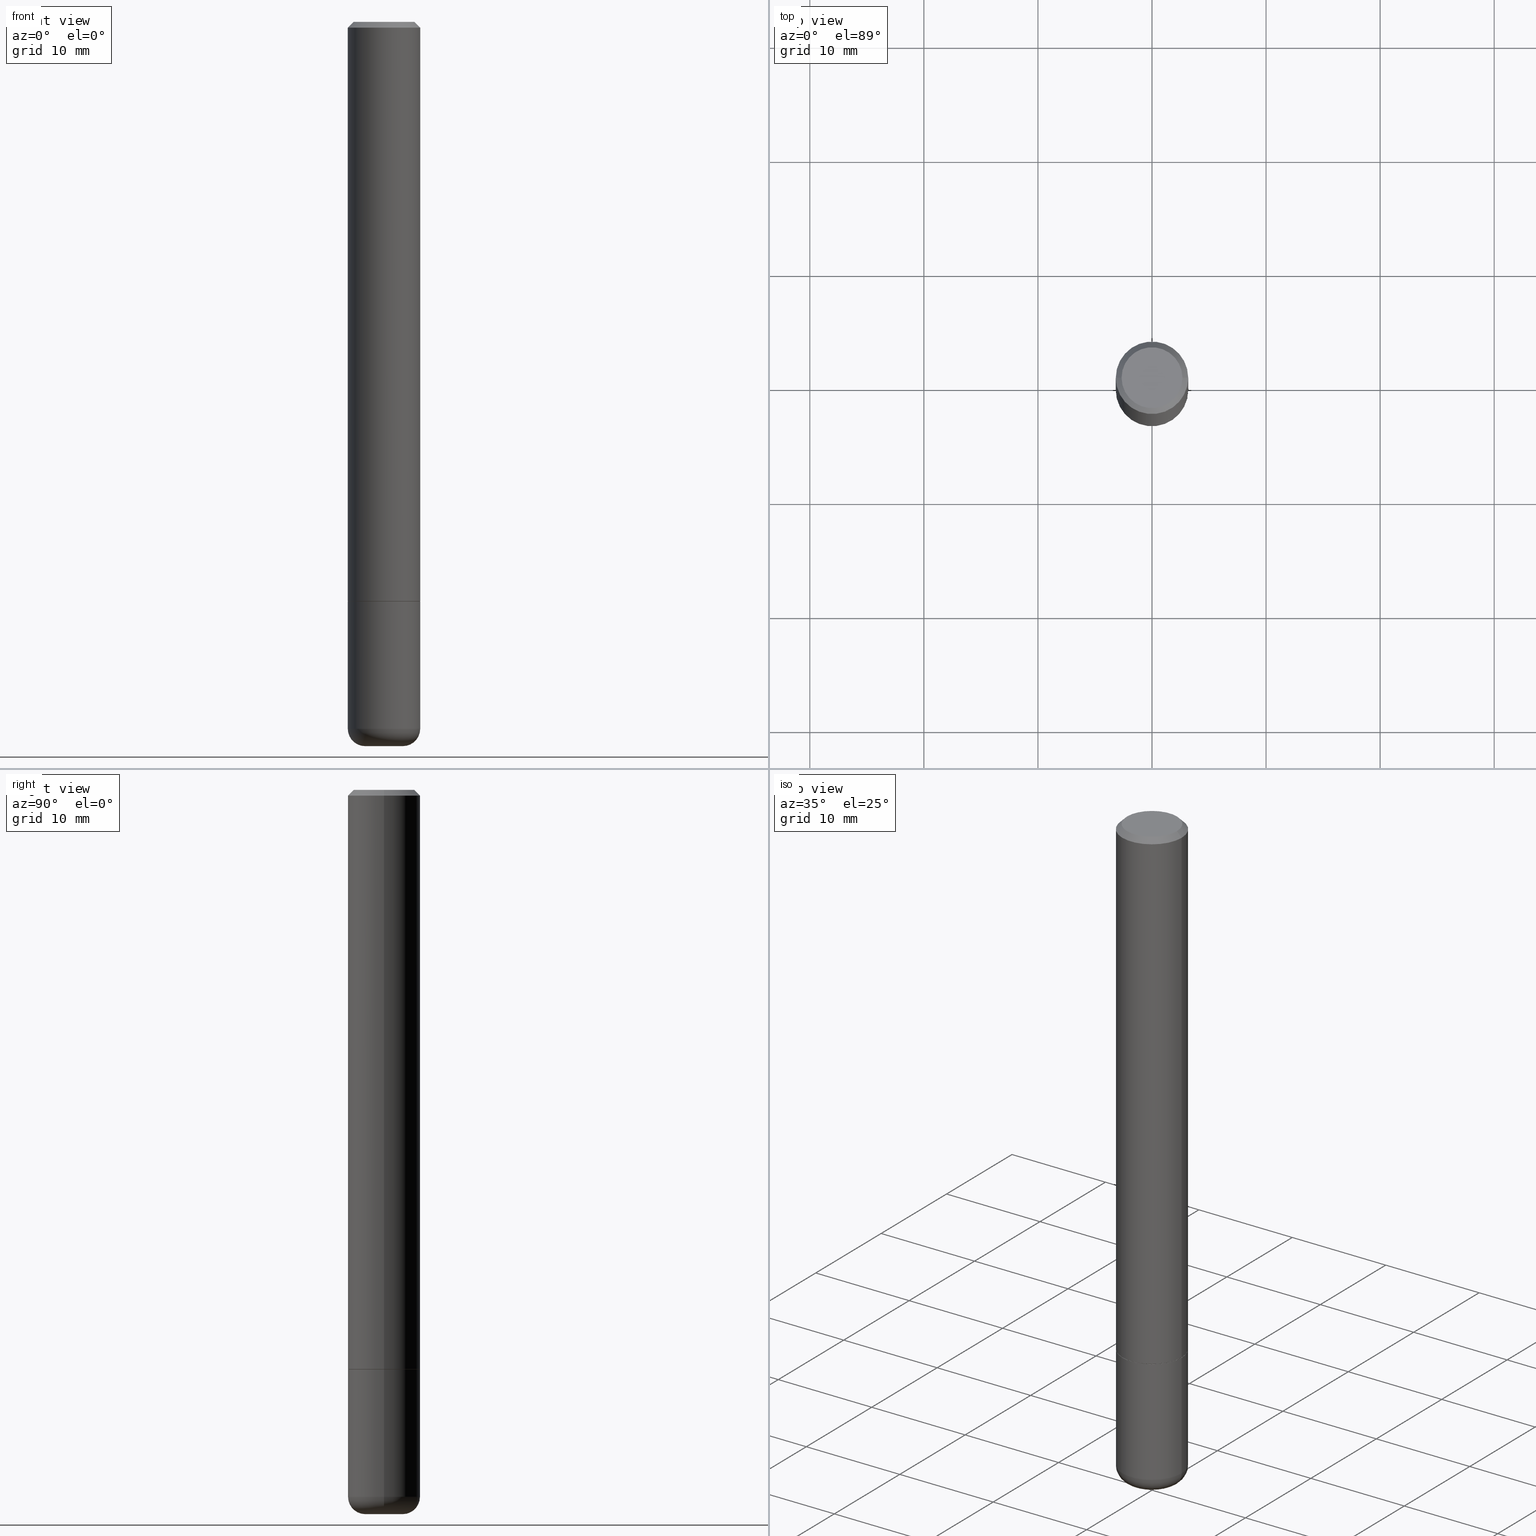
[diagram: canonical four-view strip — front | top / right | iso, engineering-drawing reading convention]
A machine part, canonical four-view strip (front | top / right | iso — engineering-drawing reading convention). The complete STEP part file that produces these views, byte-faithful:
ISO-10303-21;
HEADER;
FILE_DESCRIPTION (( 'STEP AP203' ),
    '1' );
FILE_NAME ('38795.STEP',
    '2024-03-03T13:16:22',
    ( '' ),
    ( '' ),
    'SwSTEP 2.0',
    'SolidWorks 2023',
    '' );
FILE_SCHEMA (( 'CONFIG_CONTROL_DESIGN' ));
ENDSEC;

DATA;
#1 = DIRECTION ( 'NONE',  ( 1.000000000000000000, -6.982962677686266711E-15, 0.000000000000000000 ) ) ;
#2 = DATE_AND_TIME ( #282, #67 ) ;
#3 = AXIS2_PLACEMENT_3D ( 'NONE', #9, #312, #36 ) ;
#4 = ORIENTED_EDGE ( 'NONE', *, *, #116, .F. ) ;
#5 = CYLINDRICAL_SURFACE ( 'NONE', #156, 0.1250000000000001110 ) ;
#6 = CIRCLE ( 'NONE', #18, 0.1250000000000000000 ) ;
#7 = EDGE_CURVE ( 'NONE', #42, #399, #375, .T. ) ;
#8 = CARTESIAN_POINT ( 'NONE',  ( 0.000000000000000000, 0.000000000000000000, 0.000000000000000000 ) ) ;
#9 = CARTESIAN_POINT ( 'NONE',  ( 4.890937612370279289E-31, -6.982962677686299005E-17, -0.02000000000000002470 ) ) ;
#10 = ORIENTED_EDGE ( 'NONE', *, *, #364, .T. ) ;
#11 = EDGE_LOOP ( 'NONE', ( #265, #183, #210, #335 ) ) ;
#12 = VERTEX_POINT ( 'NONE', #234 ) ;
#13 = APPROVAL_PERSON_ORGANIZATION ( #144, #55, #293 ) ;
#14 = ORIENTED_EDGE ( 'NONE', *, *, #32, .F. ) ;
#15 = ADVANCED_FACE ( 'NONE', ( #114 ), #365, .F. ) ;
#16 = AXIS2_PLACEMENT_3D ( 'NONE', #132, #261, #398 ) ;
#17 = CARTESIAN_POINT ( 'NONE',  ( 4.890937612370273194E-29, -6.982962677686291165E-15, -2.000000000000000000 ) ) ;
#18 = AXIS2_PLACEMENT_3D ( 'NONE', #123, #314, #105 ) ;
#19 = EDGE_LOOP ( 'NONE', ( #194, #396, #102, #54 ) ) ;
#20 = COORDINATED_UNIVERSAL_TIME_OFFSET ( 5, 0, .BEHIND. ) ;
#21 = CARTESIAN_POINT ( 'NONE',  ( -0.1239999999999999991, -6.096591230995543750E-15, -2.000000000000000000 ) ) ;
#22 = APPLICATION_PROTOCOL_DEFINITION ( 'international standard', 'config_control_design', 1994, #368 ) ;
#23 = EDGE_CURVE ( 'NONE', #399, #104, #310, .T. ) ;
#24 = FACE_OUTER_BOUND ( 'NONE', #207, .T. ) ;
#25 = AXIS2_PLACEMENT_3D ( 'NONE', #68, #192, #328 ) ;
#26 = ADVANCED_BREP_SHAPE_REPRESENTATION ( '38795', ( #93, #231, #279 ), #322 ) ;
#27 = AXIS2_PLACEMENT_3D ( 'NONE', #28, #215, #1 ) ;
#28 = CARTESIAN_POINT ( 'NONE',  ( 4.890937612370279289E-31, -6.982962677686299005E-17, -0.02000000000000002470 ) ) ;
#29 = COORDINATED_UNIVERSAL_TIME_OFFSET ( 5, 0, .BEHIND. ) ;
#30 = VERTEX_POINT ( 'NONE', #326 ) ;
#31 = CARTESIAN_POINT ( 'NONE',  ( -0.1250000000000000000, -6.862910152531658269E-15, -2.000000000000000000 ) ) ;
#32 = EDGE_CURVE ( 'NONE', #177, #47, #131, .T. ) ;
#33 = AXIS2_PLACEMENT_3D ( 'NONE', #264, #103, #393 ) ;
#34 = EDGE_LOOP ( 'NONE', ( #346, #226, #410, #408 ) ) ;
#35 = DIMENSIONAL_EXPONENTS ( 1.000000000000000000, 0.000000000000000000, 0.000000000000000000, 0.000000000000000000, 0.000000000000000000, 0.000000000000000000, 0.000000000000000000 ) ;
#36 = DIRECTION ( 'NONE',  ( 1.000000000000000000, -6.982962677686266711E-15, 0.000000000000000000 ) ) ;
#37 = CARTESIAN_POINT ( 'NONE',  ( 5.966943887091733341E-29, -8.519214466777275048E-15, -2.440000000000000391 ) ) ;
#38 = DIRECTION ( 'NONE',  ( 0.7071067811866078578, -2.468850131082888544E-15, 0.7071067811864871766 ) ) ;
#39 = ORIENTED_EDGE ( 'NONE', *, *, #116, .T. ) ;
#40 = EDGE_CURVE ( 'NONE', #329, #69, #391, .T. ) ;
#41 = AXIS2_PLACEMENT_3D ( 'NONE', #257, #309, #222 ) ;
#42 = VERTEX_POINT ( 'NONE', #357 ) ;
#43 = ORIENTED_EDGE ( 'NONE', *, *, #267, .T. ) ;
#44 = FACE_OUTER_BOUND ( 'NONE', #160, .T. ) ;
#45 = APPLICATION_CONTEXT ( 'configuration controlled 3d designs of mechanical parts and assemblies' ) ;
#46 = CARTESIAN_POINT ( 'NONE',  ( 6.113672015462842613E-29, -8.728703347107866520E-15, -2.500000000000000444 ) ) ;
#47 = VERTEX_POINT ( 'NONE', #126 ) ;
#48 = AXIS2_PLACEMENT_3D ( 'NONE', #308, #387, #278 ) ;
#49 =( CONVERSION_BASED_UNIT ( 'INCH', #338 ) LENGTH_UNIT ( ) NAMED_UNIT ( #35 ) );
#50 = EDGE_CURVE ( 'NONE', #47, #69, #238, .T. ) ;
#51 =( NAMED_UNIT ( * ) SI_UNIT ( $, .STERADIAN. ) SOLID_ANGLE_UNIT ( ) );
#52 = COORDINATED_UNIVERSAL_TIME_OFFSET ( 5, 0, .BEHIND. ) ;
#53 = DIRECTION ( 'NONE',  ( 1.000000000000000000, -6.982962677686265922E-15, 4.876206205277392908E-29 ) ) ;
#54 = ORIENTED_EDGE ( 'NONE', *, *, #189, .F. ) ;
#55 = APPROVAL ( #327, 'UNSPECIFIED' ) ;
#56 = CALENDAR_DATE ( 2024, 3, 3 ) ;
#57 = CYLINDRICAL_SURFACE ( 'NONE', #296, 0.1250000000000000000 ) ;
#58 = ORIENTED_EDGE ( 'NONE', *, *, #70, .T. ) ;
#59 = AXIS2_PLACEMENT_3D ( 'NONE', #273, #305, #117 ) ;
#60 = APPROVAL_PERSON_ORGANIZATION ( #302, #133, #280 ) ;
#61 = FACE_OUTER_BOUND ( 'NONE', #331, .T. ) ;
#62 = PERSON_AND_ORGANIZATION ( #186, #108 ) ;
#63 = EDGE_LOOP ( 'NONE', ( #79, #342, #101, #4 ) ) ;
#64 = DATE_TIME_ROLE ( 'classification_date' ) ;
#65 = FACE_OUTER_BOUND ( 'NONE', #377, .T. ) ;
#66 = DIRECTION ( 'NONE',  ( 1.000000000000000000, -6.982962677686266711E-15, 4.876176775795935793E-29 ) ) ;
#67 = LOCAL_TIME ( 8, 16, 22.00000000000000000, #221 ) ;
#68 = CARTESIAN_POINT ( 'NONE',  ( 4.890937612370279289E-31, -6.982962677686299005E-17, -0.02000000000000002470 ) ) ;
#69 = VERTEX_POINT ( 'NONE', #350 ) ;
#70 = EDGE_CURVE ( 'NONE', #324, #42, #400, .T. ) ;
#71 = CARTESIAN_POINT ( 'NONE',  ( 4.888492143564087591E-29, -6.979471196347447369E-15, -1.998999999999999888 ) ) ;
#72 = EDGE_LOOP ( 'NONE', ( #379, #411, #128, #372 ) ) ;
#73 = CARTESIAN_POINT ( 'NONE',  ( -0.1239999999999999991, -6.101889685343766941E-15, -2.000000000000000000 ) ) ;
#74 = CARTESIAN_POINT ( 'NONE',  ( 4.890937612370273194E-29, -6.982962677686291165E-15, -2.000000000000000000 ) ) ;
#75 = DIRECTION ( 'NONE',  ( 1.000000000000000000, -6.982962677686270655E-15, 0.000000000000000000 ) ) ;
#76 = AXIS2_PLACEMENT_3D ( 'NONE', #355, #157, #53 ) ;
#77 = PERSON_AND_ORGANIZATION ( #186, #108 ) ;
#78 = PRODUCT_RELATED_PRODUCT_CATEGORY ( 'detail', '', ( #155 ) ) ;
#79 = ORIENTED_EDGE ( 'NONE', *, *, #409, .F. ) ;
#80 = VECTOR ( 'NONE', #38, 39.37007874015748143 ) ;
#81 = LOCAL_TIME ( 8, 16, 22.00000000000000000, #52 ) ;
#82 = CC_DESIGN_DATE_AND_TIME_ASSIGNMENT ( #120, #64, ( #344 ) ) ;
#83 = DIRECTION ( 'NONE',  ( -1.000000000000000000, 6.982962677686265922E-15, -4.876176775795935793E-29 ) ) ;
#84 = DIRECTION ( 'NONE',  ( -2.445468806185136597E-29, 3.491481338843145583E-15, 1.000000000000000000 ) ) ;
#85 = ORIENTED_EDGE ( 'NONE', *, *, #371, .F. ) ;
#86 = CARTESIAN_POINT ( 'NONE',  ( 4.890937612370279289E-31, -6.982962677686299005E-17, -0.02000000000000002470 ) ) ;
#87 = PERSON_AND_ORGANIZATION_ROLE ( 'classification_officer' ) ;
#88 = DIRECTION ( 'NONE',  ( 1.000000000000000000, -6.982962677686266711E-15, 4.876176775795935793E-29 ) ) ;
#89 = DIRECTION ( 'NONE',  ( 1.000000000000000000, -6.982962677686265133E-15, 4.883557194083112340E-29 ) ) ;
#90 = ORIENTED_EDGE ( 'NONE', *, *, #97, .T. ) ;
#91 = AXIS2_PLACEMENT_3D ( 'NONE', #96, #127, #162 ) ;
#92 = CC_DESIGN_PERSON_AND_ORGANIZATION_ASSIGNMENT ( #249, #345, ( #266 ) ) ;
#93 = MANIFOLD_SOLID_BREP ( 'Body-Move/Copy2[1]', #382 ) ;
#94 = CALENDAR_DATE ( 2024, 3, 3 ) ;
#95 = CARTESIAN_POINT ( 'NONE',  ( 0.06500000000000000222, -9.182595921157474803E-15, -2.500000000000000444 ) ) ;
#96 = CARTESIAN_POINT ( 'NONE',  ( 4.890937612370273194E-29, -6.982962677686291165E-15, -2.000000000000000000 ) ) ;
#97 = EDGE_CURVE ( 'NONE', #12, #404, #223, .T. ) ;
#98 = AXIS2_PLACEMENT_3D ( 'NONE', #129, #359, #256 ) ;
#99 = AXIS2_PLACEMENT_3D ( 'NONE', #37, #191, #352 ) ;
#100 = FACE_OUTER_BOUND ( 'NONE', #320, .T. ) ;
#101 = ORIENTED_EDGE ( 'NONE', *, *, #169, .T. ) ;
#102 = ORIENTED_EDGE ( 'NONE', *, *, #306, .F. ) ;
#103 = DIRECTION ( 'NONE',  ( -2.445468806185136597E-29, 3.491481338843145583E-15, 1.000000000000000000 ) ) ;
#104 = VERTEX_POINT ( 'NONE', #164 ) ;
#105 = DIRECTION ( 'NONE',  ( 1.000000000000000000, -6.982962677686270655E-15, 0.000000000000000000 ) ) ;
#106 = CARTESIAN_POINT ( 'NONE',  ( 0.1239999999999999991, -7.848850049719387701E-15, -2.000000000000000000 ) ) ;
#107 = CARTESIAN_POINT ( 'NONE',  ( 7.332110811570580243E-16, 0.1050000000000000239, -3.730083093136809834E-16 ) ) ;
#108 = ORGANIZATION ( 'UNSPECIFIED', 'UNSPECIFIED', '' ) ;
#109 = ORIENTED_EDGE ( 'NONE', *, *, #268, .T. ) ;
#110 = APPROVAL ( #418, 'UNSPECIFIED' ) ;
#111 = DIRECTION ( 'NONE',  ( -2.445468806185136597E-29, 3.491481338843145583E-15, 1.000000000000000000 ) ) ;
#112 = CC_DESIGN_APPROVAL ( #133, ( #344 ) ) ;
#113 = DATE_AND_TIME ( #407, #336 ) ;
#114 = FACE_OUTER_BOUND ( 'NONE', #285, .T. ) ;
#115 = CYLINDRICAL_SURFACE ( 'NONE', #390, 0.1250000000000001110 ) ;
#116 = EDGE_CURVE ( 'NONE', #30, #404, #295, .T. ) ;
#117 = DIRECTION ( 'NONE',  ( 1.000000000000000000, -6.982962677686262766E-15, 0.000000000000000000 ) ) ;
#118 = VECTOR ( 'NONE', #250, 39.37007874015748143 ) ;
#119 = VECTOR ( 'NONE', #381, 39.37007874015748143 ) ;
#120 = DATE_AND_TIME ( #56, #291 ) ;
#121 = APPROVAL_DATE_TIME ( #2, #110 ) ;
#122 = EDGE_CURVE ( 'NONE', #69, #47, #235, .T. ) ;
#123 = CARTESIAN_POINT ( 'NONE',  ( 4.890937612370273194E-29, -6.982962677686291165E-15, -2.000000000000000000 ) ) ;
#124 = AXIS2_PLACEMENT_3D ( 'NONE', #107, #230, #83 ) ;
#125 = CARTESIAN_POINT ( 'NONE',  ( 0.000000000000000000, 0.000000000000000000, 0.000000000000000000 ) ) ;
#126 = CARTESIAN_POINT ( 'NONE',  ( -0.1250000000000002498, -2.636471991862024185E-15, -1.998999999999999888 ) ) ;
#127 = DIRECTION ( 'NONE',  ( -2.445468806185136597E-29, 3.491481338843145583E-15, 1.000000000000000000 ) ) ;
#128 = ORIENTED_EDGE ( 'NONE', *, *, #332, .T. ) ;
#129 = CARTESIAN_POINT ( 'NONE',  ( 4.888492143564087591E-29, -6.979471196347447369E-15, -1.998999999999999888 ) ) ;
#130 = ORIENTED_EDGE ( 'NONE', *, *, #332, .F. ) ;
#131 = LINE ( 'NONE', #73, #274 ) ;
#132 = CARTESIAN_POINT ( 'NONE',  ( -0.06500000000000000222, -8.057361688533210306E-15, -2.440000000000000391 ) ) ;
#133 = APPROVAL ( #184, 'UNSPECIFIED' ) ;
#134 = MECHANICAL_CONTEXT ( 'NONE', #368, 'mechanical' ) ;
#135 = FACE_OUTER_BOUND ( 'NONE', #19, .T. ) ;
#136 = ORIENTED_EDGE ( 'NONE', *, *, #313, .F. ) ;
#137 = VECTOR ( 'NONE', #373, 39.37007874015748143 ) ;
#138 = ADVANCED_FACE ( 'NONE', ( #290 ), #208, .T. ) ;
#139 = CARTESIAN_POINT ( 'NONE',  ( 4.890937612370273194E-29, -6.982962677686291165E-15, -2.000000000000000000 ) ) ;
#140 = PLANE ( 'NONE',  #124 ) ;
#141 = CIRCLE ( 'NONE', #270, 0.1250000000000000000 ) ;
#142 = DESIGN_CONTEXT ( 'detailed design', #45, 'design' ) ;
#143 = DIRECTION ( 'NONE',  ( 2.438088387897960049E-29, -3.491481338843145188E-15, -1.000000000000000000 ) ) ;
#144 = PERSON_AND_ORGANIZATION ( #186, #108 ) ;
#145 = ORIENTED_EDGE ( 'NONE', *, *, #364, .F. ) ;
#146 = PRODUCT_DEFINITION_SHAPE ( 'NONE', 'NONE',  #227 ) ;
#147 = ADVANCED_FACE ( 'NONE', ( #135 ), #388, .T. ) ;
#148 = DIRECTION ( 'NONE',  ( -2.445468806185136597E-29, 3.491481338843145583E-15, 1.000000000000000000 ) ) ;
#149 = CARTESIAN_POINT ( 'NONE',  ( 0.000000000000000000, 0.000000000000000000, 0.000000000000000000 ) ) ;
#150 = CC_DESIGN_APPROVAL ( #110, ( #266 ) ) ;
#151 = CC_DESIGN_PERSON_AND_ORGANIZATION_ASSIGNMENT ( #62, #87, ( #344 ) ) ;
#152 = DATE_AND_TIME ( #159, #81 ) ;
#153 = ORIENTED_EDGE ( 'NONE', *, *, #32, .T. ) ;
#154 = FACE_OUTER_BOUND ( 'NONE', #72, .T. ) ;
#155 = PRODUCT ( '38795', '38795', '', ( #134 ) ) ;
#156 = AXIS2_PLACEMENT_3D ( 'NONE', #125, #385, #219 ) ;
#157 = DIRECTION ( 'NONE',  ( -2.445468806185136597E-29, 3.491481338843145583E-15, 1.000000000000000000 ) ) ;
#158 = LINE ( 'NONE', #281, #201 ) ;
#159 = CALENDAR_DATE ( 2024, 3, 3 ) ;
#160 = EDGE_LOOP ( 'NONE', ( #199, #10 ) ) ;
#161 = UNCERTAINTY_MEASURE_WITH_UNIT (LENGTH_MEASURE( 1.000000000000000082E-05 ), #49, 'distance_accuracy_value', 'NONE');
#162 = DIRECTION ( 'NONE',  ( 1.000000000000000000, -6.982962677686262766E-15, 0.000000000000000000 ) ) ;
#163 = DIRECTION ( 'NONE',  ( -2.445468806185136597E-29, 3.491481338843145583E-15, 1.000000000000000000 ) ) ;
#164 = CARTESIAN_POINT ( 'NONE',  ( 0.1250000000000001110, -9.392084801488058387E-15, -2.440000000000000391 ) ) ;
#165 = CC_DESIGN_SECURITY_CLASSIFICATION ( #344, ( #266 ) ) ;
#166 = DIRECTION ( 'NONE',  ( -2.445468806185136597E-29, 3.491481338843145583E-15, 1.000000000000000000 ) ) ;
#167 = ORIENTED_EDGE ( 'NONE', *, *, #50, .F. ) ;
#168 = DIRECTION ( 'NONE',  ( -2.445468806185136597E-29, 3.491481338843145583E-15, 1.000000000000000000 ) ) ;
#169 = EDGE_CURVE ( 'NONE', #69, #404, #158, .T. ) ;
#170 = CIRCLE ( 'NONE', #48, 0.06000000000000024064 ) ;
#171 = AXIS2_PLACEMENT_3D ( 'NONE', #319, #232, #284 ) ;
#172 = CARTESIAN_POINT ( 'NONE',  ( -0.1250000000000001110, -7.631036047077149816E-15, -2.440000000000000391 ) ) ;
#173 = AXIS2_PLACEMENT_3D ( 'NONE', #74, #166, #262 ) ;
#174 = ADVANCED_FACE ( 'NONE', ( #354 ), #245, .T. ) ;
#175 = ORIENTED_EDGE ( 'NONE', *, *, #122, .F. ) ;
#176 = DIRECTION ( 'NONE',  ( 1.000000000000000000, -6.982962677686266711E-15, 4.876176775795935232E-29 ) ) ;
#177 = VERTEX_POINT ( 'NONE', #21 ) ;
#178 = DIRECTION ( 'NONE',  ( 2.445468806185136597E-29, -3.491481338843145583E-15, -1.000000000000000000 ) ) ;
#179 = DIRECTION ( 'NONE',  ( 1.000000000000000000, -6.982962677686262766E-15, 0.000000000000000000 ) ) ;
#180 = ADVANCED_FACE ( 'NONE', ( #61 ), #299, .T. ) ;
#181 = CARTESIAN_POINT ( 'NONE',  ( -0.1050000000000000239, 7.681258945454891804E-16, -1.280553747030648315E-17 ) ) ;
#182 = CIRCLE ( 'NONE', #353, 0.1050000000000000239 ) ;
#183 = ORIENTED_EDGE ( 'NONE', *, *, #23, .T. ) ;
#184 = APPROVAL_STATUS ( 'not_yet_approved' ) ;
#185 = ORIENTED_EDGE ( 'NONE', *, *, #306, .T. ) ;
#186 = PERSON ( 'UNSPECIFIED', 'UNSPECIFIED', 'UNSPECIFIED', ('UNSPECIFIED'), ('UNSPECIFIED'), ('UNSPECIFIED') ) ;
#187 = SHAPE_DEFINITION_REPRESENTATION ( #146, #26 ) ;
#188 = PLANE ( 'NONE',  #171 ) ;
#189 = EDGE_CURVE ( 'NONE', #104, #294, #248, .T. ) ;
#190 = AXIS2_PLACEMENT_3D ( 'NONE', #8, #401, #66 ) ;
#191 = DIRECTION ( 'NONE',  ( -2.445468806185136597E-29, 3.491481338843145583E-15, 1.000000000000000000 ) ) ;
#192 = DIRECTION ( 'NONE',  ( 2.445468806185136597E-29, -3.491481338843145583E-15, -1.000000000000000000 ) ) ;
#193 = CARTESIAN_POINT ( 'NONE',  ( 4.890937612370273194E-29, -6.982962677686291165E-15, -2.000000000000000000 ) ) ;
#194 = ORIENTED_EDGE ( 'NONE', *, *, #283, .T. ) ;
#195 = DIRECTION ( 'NONE',  ( 1.000000000000000000, -6.982962677686273810E-15, 0.000000000000000000 ) ) ;
#196 = CARTESIAN_POINT ( 'NONE',  ( -0.1250000000000000000, 8.881784197001252323E-16, -6.148668862818632227E-30 ) ) ;
#197 = CONICAL_SURFACE ( 'NONE', #311, 0.1249999999999999861, 0.7853981633974469467 ) ;
#198 = CARTESIAN_POINT ( 'NONE',  ( 0.000000000000000000, 0.000000000000000000, 0.000000000000000000 ) ) ;
#199 = ORIENTED_EDGE ( 'NONE', *, *, #313, .T. ) ;
#200 = PERSON_AND_ORGANIZATION_ROLE ( 'design_owner' ) ;
#201 = VECTOR ( 'NONE', #228, 39.37007874015748143 ) ;
#202 = CIRCLE ( 'NONE', #41, 0.06500000000000000222 ) ;
#203 = FACE_OUTER_BOUND ( 'NONE', #63, .T. ) ;
#204 = VERTEX_POINT ( 'NONE', #31 ) ;
#205 = EDGE_CURVE ( 'NONE', #260, #30, #412, .T. ) ;
#206 = CARTESIAN_POINT ( 'NONE',  ( -0.1250000000000001110, 8.881784197001260212E-16, -6.148668862818637832E-30 ) ) ;
#207 = EDGE_LOOP ( 'NONE', ( #145, #90, #43, #244 ) ) ;
#208 = TOROIDAL_SURFACE ( 'NONE', #33, 0.06500000000000000222, 0.06000000000000023370 ) ;
#209 = AXIS2_PLACEMENT_3D ( 'NONE', #225, #392, #356 ) ;
#210 = ORIENTED_EDGE ( 'NONE', *, *, #189, .T. ) ;
#211 = CARTESIAN_POINT ( 'NONE',  ( 5.966943887091733341E-29, -8.519214466777275048E-15, -2.440000000000000391 ) ) ;
#212 = ORIENTED_EDGE ( 'NONE', *, *, #371, .T. ) ;
#213 = ADVANCED_FACE ( 'NONE', ( #154 ), #330, .T. ) ;
#214 = DATE_AND_TIME ( #94, #286 ) ;
#215 = DIRECTION ( 'NONE',  ( -2.445468806185136597E-29, 3.491481338843145583E-15, 1.000000000000000000 ) ) ;
#216 = AXIS2_PLACEMENT_3D ( 'NONE', #71, #233, #362 ) ;
#217 = CARTESIAN_POINT ( 'NONE',  ( -0.1249999999999999861, 8.030407079339202378E-16, -0.02000000000000002470 ) ) ;
#218 = SECURITY_CLASSIFICATION_LEVEL ( 'unclassified' ) ;
#219 = DIRECTION ( 'NONE',  ( 1.000000000000000000, -6.982962677686266711E-15, 4.876176775795935232E-29 ) ) ;
#220 = ADVANCED_FACE ( 'NONE', ( #24 ), #197, .T. ) ;
#221 = COORDINATED_UNIVERSAL_TIME_OFFSET ( 5, 0, .BEHIND. ) ;
#222 = DIRECTION ( 'NONE',  ( 1.000000000000000000, -6.982962677686273810E-15, 0.000000000000000000 ) ) ;
#223 = LINE ( 'NONE', #315, #252 ) ;
#224 = DIRECTION ( 'NONE',  ( -2.445468806185136877E-29, 3.491481338843145188E-15, 1.000000000000000000 ) ) ;
#225 = CARTESIAN_POINT ( 'NONE',  ( -8.560476123667674142E-29, -2.974291868298682892E-14, -2.500000000000000000 ) ) ;
#226 = ORIENTED_EDGE ( 'NONE', *, *, #409, .T. ) ;
#227 = PRODUCT_DEFINITION ( 'UNKNOWN', '', #266, #142 ) ;
#228 = DIRECTION ( 'NONE',  ( -2.445468806185136877E-29, 3.491481338843145188E-15, 1.000000000000000000 ) ) ;
#229 = ORIENTED_EDGE ( 'NONE', *, *, #343, .F. ) ;
#230 = DIRECTION ( 'NONE',  ( 2.438088387897960049E-29, -3.491481338843145188E-15, -1.000000000000000000 ) ) ;
#231 = MANIFOLD_SOLID_BREP ( 'Body-Move/Copy2[2]', #321 ) ;
#232 = DIRECTION ( 'NONE',  ( -2.438088387897960049E-29, 3.491481338843145188E-15, 1.000000000000000000 ) ) ;
#233 = DIRECTION ( 'NONE',  ( -2.445468806185136597E-29, 3.491481338843145583E-15, 1.000000000000000000 ) ) ;
#234 = CARTESIAN_POINT ( 'NONE',  ( 0.1050000000000000239, -8.238720831321576644E-16, -1.280553747029579039E-17 ) ) ;
#235 = CIRCLE ( 'NONE', #98, 0.1250000000000002498 ) ;
#236 = CARTESIAN_POINT ( 'NONE',  ( 0.000000000000000000, 0.000000000000000000, 0.000000000000000000 ) ) ;
#237 = EDGE_LOOP ( 'NONE', ( #58, #289, #287, #130 ) ) ;
#238 = CIRCLE ( 'NONE', #216, 0.1250000000000002498 ) ;
#239 = APPROVAL_PERSON_ORGANIZATION ( #348, #110, #384 ) ;
#240 = DIRECTION ( 'NONE',  ( 1.000000000000000000, -6.982962677686265922E-15, 4.876206205277392908E-29 ) ) ;
#241 = CC_DESIGN_DATE_AND_TIME_ASSIGNMENT ( #152, #251, ( #227 ) ) ;
#242 = APPROVAL_DATE_TIME ( #113, #55 ) ;
#243 = EDGE_LOOP ( 'NONE', ( #288, #153, #175, #374 ) ) ;
#244 = ORIENTED_EDGE ( 'NONE', *, *, #205, .F. ) ;
#245 = CONICAL_SURFACE ( 'NONE', #25, 0.1249999999999999861, 0.7853981633974469467 ) ;
#246 = CIRCLE ( 'NONE', #99, 0.1250000000000000000 ) ;
#247 = CC_DESIGN_PERSON_AND_ORGANIZATION_ASSIGNMENT ( #334, #369, ( #227 ) ) ;
#248 = LINE ( 'NONE', #376, #118 ) ;
#249 = PERSON_AND_ORGANIZATION ( #186, #108 ) ;
#250 = DIRECTION ( 'NONE',  ( -2.445468806185136877E-29, 3.491481338843145188E-15, 1.000000000000000000 ) ) ;
#251 = DATE_TIME_ROLE ( 'creation_date' ) ;
#252 = VECTOR ( 'NONE', #318, 39.37007874015748143 ) ;
#253 = CIRCLE ( 'NONE', #91, 0.1239999999999999991 ) ;
#254 = CC_DESIGN_PERSON_AND_ORGANIZATION_ASSIGNMENT ( #351, #276, ( #266 ) ) ;
#255 = PLANE ( 'NONE',  #209 ) ;
#256 = DIRECTION ( 'NONE',  ( 1.000000000000000000, -6.982962677686264344E-15, 0.000000000000000000 ) ) ;
#257 = CARTESIAN_POINT ( 'NONE',  ( 6.113672015462842613E-29, -8.728703347107866520E-15, -2.500000000000000444 ) ) ;
#258 = ADVANCED_FACE ( 'NONE', ( #298 ), #57, .T. ) ;
#259 = CIRCLE ( 'NONE', #415, 0.1239999999999999991 ) ;
#260 = VERTEX_POINT ( 'NONE', #181 ) ;
#261 = DIRECTION ( 'NONE',  ( 7.105427357601001859E-15, 1.000000000000000000, -3.491481338843145583E-15 ) ) ;
#262 = DIRECTION ( 'NONE',  ( 1.000000000000000000, -6.982962677686262766E-15, 0.000000000000000000 ) ) ;
#263 = ORIENTED_EDGE ( 'NONE', *, *, #70, .F. ) ;
#264 = CARTESIAN_POINT ( 'NONE',  ( 5.966943887091733341E-29, -8.519214466777275048E-15, -2.440000000000000391 ) ) ;
#265 = ORIENTED_EDGE ( 'NONE', *, *, #325, .F. ) ;
#266 = PRODUCT_DEFINITION_FORMATION_WITH_SPECIFIED_SOURCE ( 'ANY', '', #155, .NOT_KNOWN. ) ;
#267 = EDGE_CURVE ( 'NONE', #404, #30, #402, .T. ) ;
#268 = EDGE_CURVE ( 'NONE', #204, #294, #6, .T. ) ;
#269 =( LENGTH_UNIT ( ) NAMED_UNIT ( * ) SI_UNIT ( $, .METRE. ) );
#270 = AXIS2_PLACEMENT_3D ( 'NONE', #193, #163, #75 ) ;
#271 = DIRECTION ( 'NONE',  ( 0.000000000000000000, 0.000000000000000000, 1.000000000000000000 ) ) ;
#272 = ADVANCED_FACE ( 'NONE', ( #65 ), #188, .F. ) ;
#273 = CARTESIAN_POINT ( 'NONE',  ( 4.890937612370273194E-29, -6.982962677686291165E-15, -2.000000000000000000 ) ) ;
#274 = VECTOR ( 'NONE', #397, 39.37007874015748143 ) ;
#275 = CC_DESIGN_APPROVAL ( #55, ( #227 ) ) ;
#276 = PERSON_AND_ORGANIZATION_ROLE ( 'design_supplier' ) ;
#277 = APPROVAL_DATE_TIME ( #214, #133 ) ;
#278 = DIRECTION ( 'NONE',  ( 1.000000000000000000, -6.982962677686272233E-15, 0.000000000000000000 ) ) ;
#279 = AXIS2_PLACEMENT_3D ( 'NONE', #236, #271, #413 ) ;
#280 = APPROVAL_ROLE ( '' ) ;
#281 = CARTESIAN_POINT ( 'NONE',  ( 0.1250000000000001110, -8.728703347107841277E-16, 6.095220969744924646E-30 ) ) ;
#282 = CALENDAR_DATE ( 2024, 3, 3 ) ;
#283 = EDGE_CURVE ( 'NONE', #104, #399, #246, .T. ) ;
#284 = DIRECTION ( 'NONE',  ( 1.000000000000000000, -6.982962677686265922E-15, 4.876176775795935793E-29 ) ) ;
#285 = EDGE_LOOP ( 'NONE', ( #185, #109 ) ) ;
#286 = LOCAL_TIME ( 8, 16, 22.00000000000000000, #29 ) ;
#287 = ORIENTED_EDGE ( 'NONE', *, *, #283, .F. ) ;
#288 = ORIENTED_EDGE ( 'NONE', *, *, #343, .T. ) ;
#289 = ORIENTED_EDGE ( 'NONE', *, *, #7, .T. ) ;
#290 = FACE_OUTER_BOUND ( 'NONE', #237, .T. ) ;
#291 = LOCAL_TIME ( 8, 16, 22.00000000000000000, #341 ) ;
#292 = EDGE_CURVE ( 'NONE', #42, #324, #202, .T. ) ;
#293 = APPROVAL_ROLE ( '' ) ;
#294 = VERTEX_POINT ( 'NONE', #389 ) ;
#295 = CIRCLE ( 'NONE', #3, 0.1249999999999999861 ) ;
#296 = AXIS2_PLACEMENT_3D ( 'NONE', #149, #417, #88 ) ;
#297 = APPLICATION_PROTOCOL_DEFINITION ( 'international standard', 'config_control_design', 1994, #45 ) ;
#298 = FACE_OUTER_BOUND ( 'NONE', #11, .T. ) ;
#299 = CONICAL_SURFACE ( 'NONE', #59, 0.1239999999999999991, 0.7853981633975336552 ) ;
#300 = AXIS2_PLACEMENT_3D ( 'NONE', #378, #301, #89 ) ;
#301 = DIRECTION ( 'NONE',  ( -2.445468806185136597E-29, 3.491481338843145583E-15, 1.000000000000000000 ) ) ;
#302 = PERSON_AND_ORGANIZATION ( #186, #108 ) ;
#303 = ORIENTED_EDGE ( 'NONE', *, *, #97, .F. ) ;
#304 = ADVANCED_FACE ( 'NONE', ( #100 ), #255, .T. ) ;
#305 = DIRECTION ( 'NONE',  ( -2.445468806185136597E-29, 3.491481338843145583E-15, 1.000000000000000000 ) ) ;
#306 = EDGE_CURVE ( 'NONE', #294, #204, #141, .T. ) ;
#307 = ORIENTED_EDGE ( 'NONE', *, *, #205, .T. ) ;
#308 = CARTESIAN_POINT ( 'NONE',  ( 0.06500000000000000222, -8.973107040826881753E-15, -2.440000000000000391 ) ) ;
#309 = DIRECTION ( 'NONE',  ( -2.445468806185136597E-29, 3.491481338843145583E-15, 1.000000000000000000 ) ) ;
#310 = CIRCLE ( 'NONE', #414, 0.1250000000000000000 ) ;
#311 = AXIS2_PLACEMENT_3D ( 'NONE', #86, #178, #339 ) ;
#312 = DIRECTION ( 'NONE',  ( -2.445468806185136597E-29, 3.491481338843145583E-15, 1.000000000000000000 ) ) ;
#313 = EDGE_CURVE ( 'NONE', #260, #12, #182, .T. ) ;
#314 = DIRECTION ( 'NONE',  ( -2.445468806185136597E-29, 3.491481338843145583E-15, 1.000000000000000000 ) ) ;
#315 = CARTESIAN_POINT ( 'NONE',  ( 0.1249999999999999861, -9.273918764983043491E-16, -0.02000000000000002470 ) ) ;
#316 = FACE_OUTER_BOUND ( 'NONE', #34, .T. ) ;
#317 = EDGE_LOOP ( 'NONE', ( #303, #136, #307, #39 ) ) ;
#318 = DIRECTION ( 'NONE',  ( 0.7071067811865465735, -7.319954787623252890E-15, -0.7071067811865484609 ) ) ;
#319 = CARTESIAN_POINT ( 'NONE',  ( 4.890937612370273194E-29, -6.982962677686291165E-15, -2.000000000000000000 ) ) ;
#320 = EDGE_LOOP ( 'NONE', ( #263, #394 ) ) ;
#321 = CLOSED_SHELL ( 'NONE', ( #395, #337, #220, #174, #403, #180, #272, #380 ) ) ;
#322 =( GEOMETRIC_REPRESENTATION_CONTEXT ( 3 ) GLOBAL_UNCERTAINTY_ASSIGNED_CONTEXT ( ( #161 ) ) GLOBAL_UNIT_ASSIGNED_CONTEXT ( ( #49, #406, #51 ) ) REPRESENTATION_CONTEXT ( 'NONE', 'WORKASPACE' ) );
#323 = LINE ( 'NONE', #206, #137 ) ;
#324 = VERTEX_POINT ( 'NONE', #95 ) ;
#325 = EDGE_CURVE ( 'NONE', #399, #204, #358, .T. ) ;
#326 = CARTESIAN_POINT ( 'NONE',  ( -0.1249999999999999861, 8.030407079339202378E-16, -0.02000000000000002470 ) ) ;
#327 = APPROVAL_STATUS ( 'not_yet_approved' ) ;
#328 = DIRECTION ( 'NONE',  ( -1.000000000000000000, 6.982962677686266711E-15, 0.000000000000000000 ) ) ;
#329 = VERTEX_POINT ( 'NONE', #349 ) ;
#330 = TOROIDAL_SURFACE ( 'NONE', #300, 0.06500000000000000222, 0.06000000000000023370 ) ;
#331 = EDGE_LOOP ( 'NONE', ( #14, #212, #370, #167 ) ) ;
#332 = EDGE_CURVE ( 'NONE', #324, #104, #170, .T. ) ;
#333 = CARTESIAN_POINT ( 'NONE',  ( 0.1249999999999999861, -9.273918764983043491E-16, -0.02000000000000002470 ) ) ;
#334 = PERSON_AND_ORGANIZATION ( #186, #108 ) ;
#335 = ORIENTED_EDGE ( 'NONE', *, *, #268, .F. ) ;
#336 = LOCAL_TIME ( 8, 16, 22.00000000000000000, #20 ) ;
#337 = ADVANCED_FACE ( 'NONE', ( #316 ), #5, .T. ) ;
#338 = LENGTH_MEASURE_WITH_UNIT ( LENGTH_MEASURE( 0.02539999999999999897 ), #269 );
#339 = DIRECTION ( 'NONE',  ( -1.000000000000000000, 6.982962677686266711E-15, 0.000000000000000000 ) ) ;
#340 = DIRECTION ( 'NONE',  ( -2.445468806185136597E-29, 3.491481338843145583E-15, 1.000000000000000000 ) ) ;
#341 = COORDINATED_UNIVERSAL_TIME_OFFSET ( 5, 0, .BEHIND. ) ;
#342 = ORIENTED_EDGE ( 'NONE', *, *, #50, .T. ) ;
#343 = EDGE_CURVE ( 'NONE', #329, #177, #253, .T. ) ;
#344 = SECURITY_CLASSIFICATION ( '', '', #218 ) ;
#345 = PERSON_AND_ORGANIZATION_ROLE ( 'creator' ) ;
#346 = ORIENTED_EDGE ( 'NONE', *, *, #122, .T. ) ;
#347 = DIRECTION ( 'NONE',  ( -1.000000000000000000, 6.982962677686265922E-15, -4.876176775795935793E-29 ) ) ;
#348 = PERSON_AND_ORGANIZATION ( #186, #108 ) ;
#349 = CARTESIAN_POINT ( 'NONE',  ( 0.1239999999999999991, -7.848850049719387701E-15, -2.000000000000000000 ) ) ;
#350 = CARTESIAN_POINT ( 'NONE',  ( 0.1250000000000002498, -7.852341531058232286E-15, -1.998999999999999888 ) ) ;
#351 = PERSON_AND_ORGANIZATION ( #186, #108 ) ;
#352 = DIRECTION ( 'NONE',  ( 1.000000000000000000, -6.982962677686262766E-15, 0.000000000000000000 ) ) ;
#353 = AXIS2_PLACEMENT_3D ( 'NONE', #386, #111, #240 ) ;
#354 = FACE_OUTER_BOUND ( 'NONE', #317, .T. ) ;
#355 = CARTESIAN_POINT ( 'NONE',  ( 3.131554243005659264E-46, -4.471029511141341874E-32, -1.280553747030123384E-17 ) ) ;
#356 = DIRECTION ( 'NONE',  ( -1.000000000000000000, 6.982962677686265922E-15, -4.876176775795935793E-29 ) ) ;
#357 = CARTESIAN_POINT ( 'NONE',  ( -0.06500000000000000222, -7.948943307970475008E-15, -2.500000000000000444 ) ) ;
#358 = LINE ( 'NONE', #196, #383 ) ;
#359 = DIRECTION ( 'NONE',  ( -2.445468806185136597E-29, 3.491481338843145583E-15, 1.000000000000000000 ) ) ;
#360 = FACE_OUTER_BOUND ( 'NONE', #243, .T. ) ;
#361 = AXIS2_PLACEMENT_3D ( 'NONE', #46, #168, #195 ) ;
#362 = DIRECTION ( 'NONE',  ( 1.000000000000000000, -6.982962677686264344E-15, 0.000000000000000000 ) ) ;
#363 = CONICAL_SURFACE ( 'NONE', #173, 0.1239999999999999991, 0.7853981633975336552 ) ;
#364 = EDGE_CURVE ( 'NONE', #12, #260, #366, .T. ) ;
#365 = PLANE ( 'NONE',  #405 ) ;
#366 = CIRCLE ( 'NONE', #76, 0.1050000000000000239 ) ;
#367 = DIRECTION ( 'NONE',  ( 1.000000000000000000, -6.982962677686262766E-15, 0.000000000000000000 ) ) ;
#368 = APPLICATION_CONTEXT ( 'configuration controlled 3d designs of mechanical parts and assemblies' ) ;
#369 = PERSON_AND_ORGANIZATION_ROLE ( 'creator' ) ;
#370 = ORIENTED_EDGE ( 'NONE', *, *, #40, .T. ) ;
#371 = EDGE_CURVE ( 'NONE', #177, #329, #259, .T. ) ;
#372 = ORIENTED_EDGE ( 'NONE', *, *, #23, .F. ) ;
#373 = DIRECTION ( 'NONE',  ( -2.445468806185136877E-29, 3.491481338843145188E-15, 1.000000000000000000 ) ) ;
#374 = ORIENTED_EDGE ( 'NONE', *, *, #40, .F. ) ;
#375 = CIRCLE ( 'NONE', #16, 0.06000000000000024064 ) ;
#376 = CARTESIAN_POINT ( 'NONE',  ( 0.1250000000000000000, -8.728703347107833388E-16, 6.095220969744919741E-30 ) ) ;
#377 = EDGE_LOOP ( 'NONE', ( #229, #85 ) ) ;
#378 = CARTESIAN_POINT ( 'NONE',  ( 5.966943887091733341E-29, -8.519214466777275048E-15, -2.440000000000000391 ) ) ;
#379 = ORIENTED_EDGE ( 'NONE', *, *, #7, .F. ) ;
#380 = ADVANCED_FACE ( 'NONE', ( #44 ), #140, .F. ) ;
#381 = DIRECTION ( 'NONE',  ( -0.7071067811865465735, 2.468850131082246805E-15, -0.7071067811865484609 ) ) ;
#382 = CLOSED_SHELL ( 'NONE', ( #147, #138, #15, #258, #213, #304 ) ) ;
#383 = VECTOR ( 'NONE', #224, 39.37007874015748143 ) ;
#384 = APPROVAL_ROLE ( '' ) ;
#385 = DIRECTION ( 'NONE',  ( -2.445468806185136597E-29, 3.491481338843145583E-15, 1.000000000000000000 ) ) ;
#386 = CARTESIAN_POINT ( 'NONE',  ( 3.131554243005659264E-46, -4.471029511141341874E-32, -1.280553747030123384E-17 ) ) ;
#387 = DIRECTION ( 'NONE',  ( -6.982962677686266711E-15, -1.000000000000000000, 3.491481338843145583E-15 ) ) ;
#388 = CYLINDRICAL_SURFACE ( 'NONE', #190, 0.1250000000000000000 ) ;
#389 = CARTESIAN_POINT ( 'NONE',  ( 0.1250000000000000000, -7.855833012397075293E-15, -2.000000000000000000 ) ) ;
#390 = AXIS2_PLACEMENT_3D ( 'NONE', #198, #148, #176 ) ;
#391 = LINE ( 'NONE', #106, #80 ) ;
#392 = DIRECTION ( 'NONE',  ( 2.438088387897960049E-29, -3.491481338843145188E-15, -1.000000000000000000 ) ) ;
#393 = DIRECTION ( 'NONE',  ( 1.000000000000000000, -6.982962677686265133E-15, 4.883557194083112340E-29 ) ) ;
#394 = ORIENTED_EDGE ( 'NONE', *, *, #292, .F. ) ;
#395 = ADVANCED_FACE ( 'NONE', ( #360 ), #363, .T. ) ;
#396 = ORIENTED_EDGE ( 'NONE', *, *, #325, .T. ) ;
#397 = DIRECTION ( 'NONE',  ( -0.7071067811866078578, 7.493145998870571886E-15, 0.7071067811864871766 ) ) ;
#398 = DIRECTION ( 'NONE',  ( -1.000000000000000000, 7.105427357600994759E-15, 0.000000000000000000 ) ) ;
#399 = VERTEX_POINT ( 'NONE', #172 ) ;
#400 = CIRCLE ( 'NONE', #361, 0.06500000000000000222 ) ;
#401 = DIRECTION ( 'NONE',  ( -2.445468806185136597E-29, 3.491481338843145583E-15, 1.000000000000000000 ) ) ;
#402 = CIRCLE ( 'NONE', #27, 0.1249999999999999861 ) ;
#403 = ADVANCED_FACE ( 'NONE', ( #203 ), #115, .T. ) ;
#404 = VERTEX_POINT ( 'NONE', #333 ) ;
#405 = AXIS2_PLACEMENT_3D ( 'NONE', #139, #143, #347 ) ;
#406 =( NAMED_UNIT ( * ) PLANE_ANGLE_UNIT ( ) SI_UNIT ( $, .RADIAN. ) );
#407 = CALENDAR_DATE ( 2024, 3, 3 ) ;
#408 = ORIENTED_EDGE ( 'NONE', *, *, #169, .F. ) ;
#409 = EDGE_CURVE ( 'NONE', #47, #30, #323, .T. ) ;
#410 = ORIENTED_EDGE ( 'NONE', *, *, #267, .F. ) ;
#411 = ORIENTED_EDGE ( 'NONE', *, *, #292, .T. ) ;
#412 = LINE ( 'NONE', #217, #119 ) ;
#413 = DIRECTION ( 'NONE',  ( 1.000000000000000000, 0.000000000000000000, 0.000000000000000000 ) ) ;
#414 = AXIS2_PLACEMENT_3D ( 'NONE', #211, #340, #179 ) ;
#415 = AXIS2_PLACEMENT_3D ( 'NONE', #17, #84, #367 ) ;
#416 = CC_DESIGN_PERSON_AND_ORGANIZATION_ASSIGNMENT ( #77, #200, ( #155 ) ) ;
#417 = DIRECTION ( 'NONE',  ( -2.445468806185136597E-29, 3.491481338843145583E-15, 1.000000000000000000 ) ) ;
#418 = APPROVAL_STATUS ( 'not_yet_approved' ) ;
ENDSEC;
END-ISO-10303-21;
